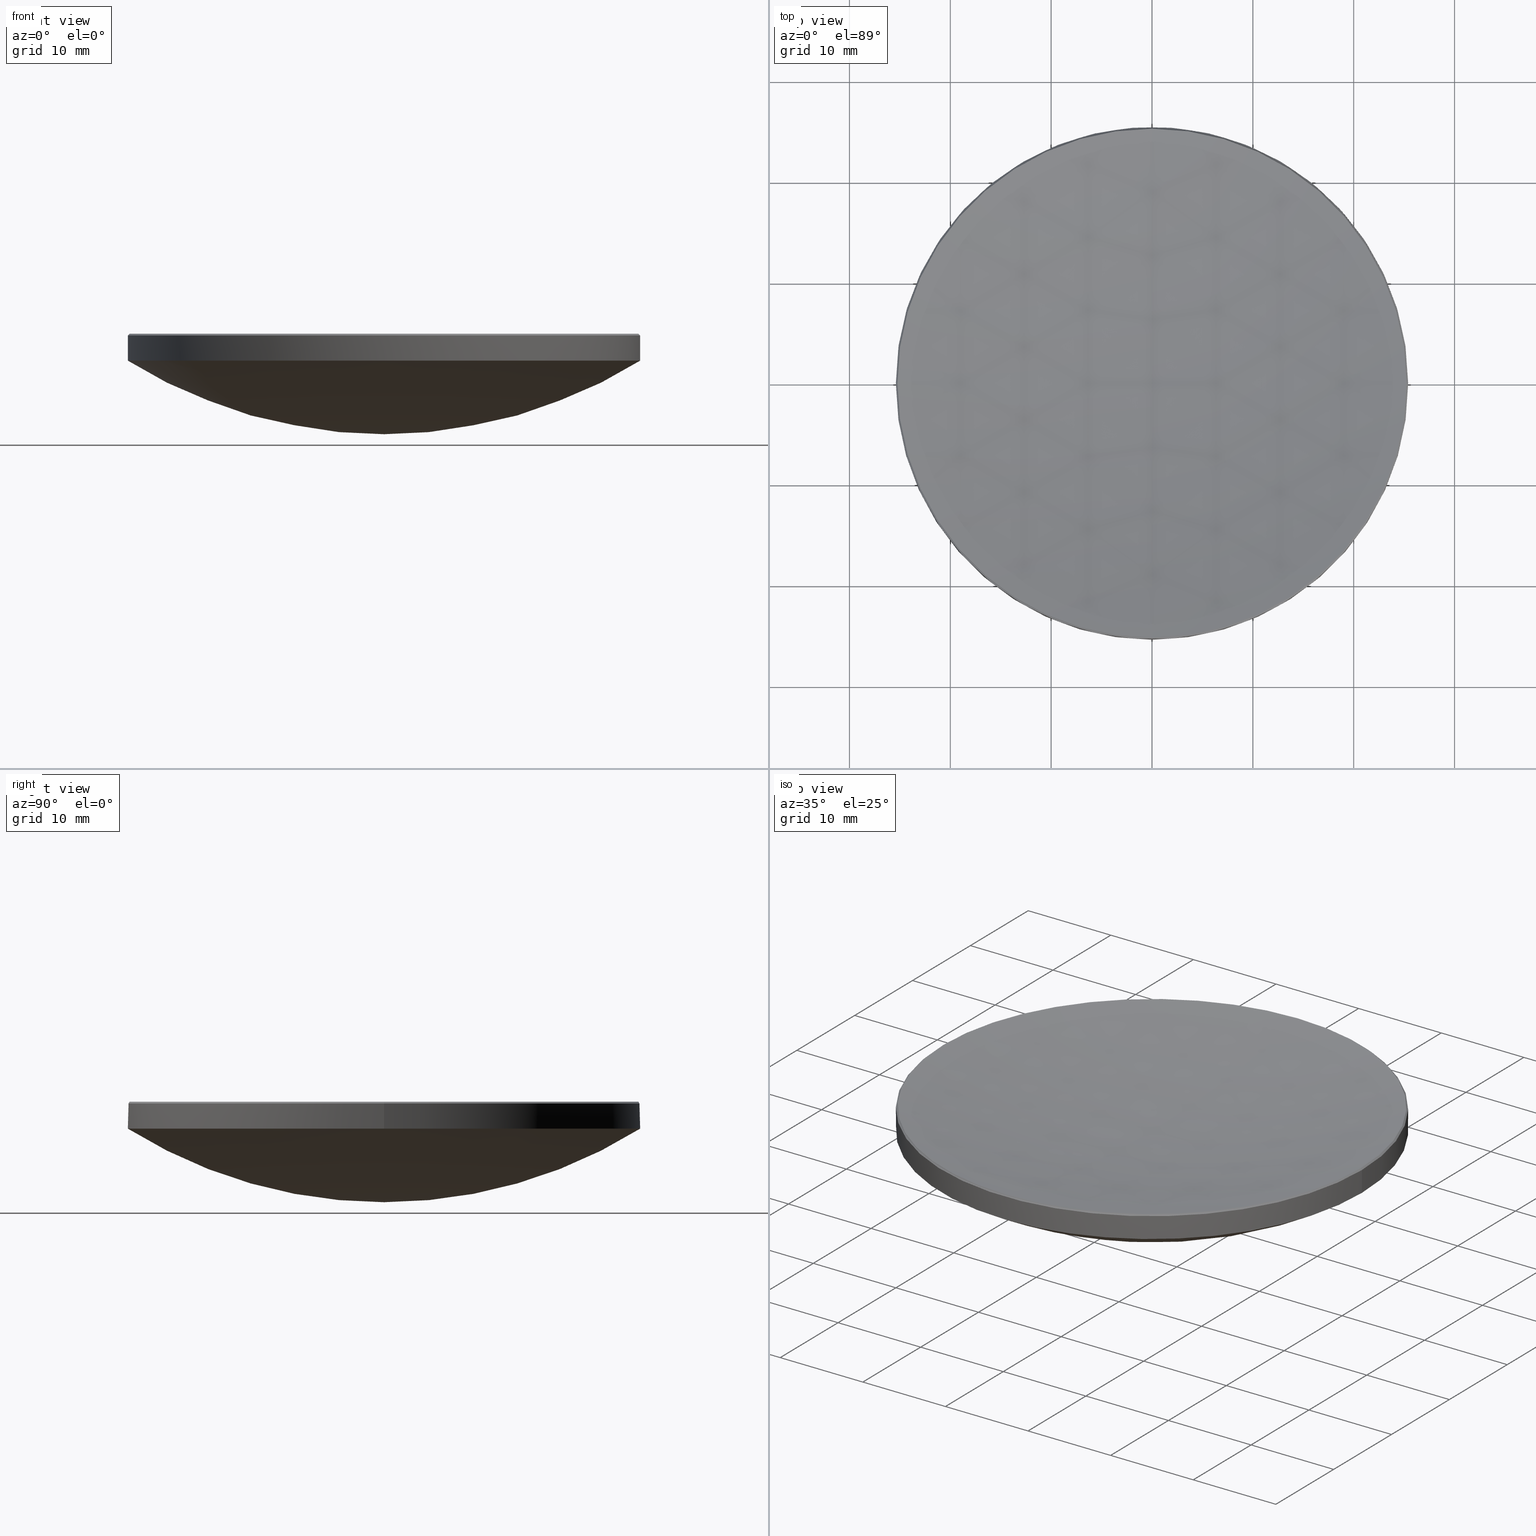
[diagram: canonical four-view strip — front | top / right | iso, engineering-drawing reading convention]
A machine part, canonical four-view strip (front | top / right | iso — engineering-drawing reading convention). The complete STEP part file that produces these views, byte-faithful:
ISO-10303-21;
HEADER;
FILE_DESCRIPTION (( 'STEP AP214' ),
    '1' );
FILE_NAME ('GLM1-050B-150-SWIR.STEP',
    '2024-08-09T02:23:44',
    ( 'Windows User' ),
    ( 'P R C' ),
    'SwSTEP 2.0',
    'SolidWorks 2022',
    '' );
FILE_SCHEMA (( 'AUTOMOTIVE_DESIGN' ));
ENDSEC;

DATA;
#1 = CARTESIAN_POINT ( 'NONE',  ( 0.000000000000000000, 0.000000000000000000, 53.57557023628872628 ) ) ;
#2 = CONICAL_SURFACE ( 'NONE', #137, 25.23567881563414872, 0.7853981633974062015 ) ;
#3 = DIRECTION ( 'NONE',  ( 0.7071067811865177077, 8.659560562354566777E-17, -0.7071067811865773267 ) ) ;
#4 = DIRECTION ( 'NONE',  ( 0.000000000000000000, 1.000000000000000000, 0.000000000000000000 ) ) ;
#5 = DIRECTION ( 'NONE',  ( -0.000000000000000000, -0.000000000000000000, 1.000000000000000000 ) ) ;
#6 = DIRECTION ( 'NONE',  ( -0.000000000000000000, -0.000000000000000000, -1.000000000000000000 ) ) ;
#7 = LINE ( 'NONE', #179, #99 ) ;
#8 = CARTESIAN_POINT ( 'NONE',  ( 0.000000000000000000, 0.000000000000000000, 13.00000000000000000 ) ) ;
#9 = EDGE_CURVE ( 'NONE', #229, #209, #201, .T. ) ;
#10 =( LENGTH_UNIT ( ) NAMED_UNIT ( * ) SI_UNIT ( .MILLI., .METRE. ) );
#11 = SURFACE_STYLE_USAGE ( .BOTH. , #253 ) ;
#12 = CIRCLE ( 'NONE', #36, 25.23567881563414517 ) ;
#13 = EDGE_CURVE ( 'NONE', #264, #82, #73, .T. ) ;
#14 = VERTEX_POINT ( 'NONE', #167 ) ;
#15 = ORIENTED_EDGE ( 'NONE', *, *, #46, .T. ) ;
#16 = AXIS2_PLACEMENT_3D ( 'NONE', #271, #91, #4 ) ;
#17 = ORIENTED_EDGE ( 'NONE', *, *, #61, .T. ) ;
#18 = EDGE_CURVE ( 'NONE', #82, #80, #66, .T. ) ;
#19 = APPLICATION_CONTEXT ( 'automotive_design' ) ;
#20 = PRODUCT_DEFINITION_CONTEXT ( 'detailed design', #72, 'design' ) ;
#21 = VERTEX_POINT ( 'NONE', #211 ) ;
#22 = AXIS2_PLACEMENT_3D ( 'NONE', #1, #241, #109 ) ;
#23 = CARTESIAN_POINT ( 'NONE',  ( 25.23567881563414872, 3.090479328587702520E-15, 15.66432118436583742 ) ) ;
#24 = LINE ( 'NONE', #23, #127 ) ;
#25 = AXIS2_PLACEMENT_3D ( 'NONE', #105, #107, #268 ) ;
#26 = DIRECTION ( 'NONE',  ( -0.000000000000000000, -0.000000000000000000, 1.000000000000000000 ) ) ;
#27 = CARTESIAN_POINT ( 'NONE',  ( 0.000000000000000000, 0.000000000000000000, 15.66432118436585164 ) ) ;
#28 = FILL_AREA_STYLE_COLOUR ( '', #272 ) ;
#29 = DIRECTION ( 'NONE',  ( 0.000000000000000000, 0.000000000000000000, -1.000000000000000000 ) ) ;
#30 = DIRECTION ( 'NONE',  ( -0.000000000000000000, -0.000000000000000000, 1.000000000000000000 ) ) ;
#31 = EDGE_CURVE ( 'NONE', #209, #14, #236, .T. ) ;
#32 = CIRCLE ( 'NONE', #172, 47.86999999999999744 ) ;
#33 = FACE_OUTER_BOUND ( 'NONE', #232, .T. ) ;
#34 = CARTESIAN_POINT ( 'NONE',  ( 0.000000000000000000, 0.000000000000000000, 53.57557023628872628 ) ) ;
#35 = ORIENTED_EDGE ( 'NONE', *, *, #9, .F. ) ;
#36 = AXIS2_PLACEMENT_3D ( 'NONE', #86, #197, #174 ) ;
#37 = FILL_AREA_STYLE ('',( #204 ) ) ;
#38 = ORIENTED_EDGE ( 'NONE', *, *, #133, .F. ) ;
#39 = AXIS2_PLACEMENT_3D ( 'NONE', #51, #114, #138 ) ;
#40 = CARTESIAN_POINT ( 'NONE',  ( 0.000000000000000000, 0.000000000000000000, 15.49999999999997158 ) ) ;
#41 = ORIENTED_EDGE ( 'NONE', *, *, #210, .T. ) ;
#42 = AXIS2_PLACEMENT_3D ( 'NONE', #195, #216, #173 ) ;
#43 = STYLED_ITEM ( 'NONE', ( #56 ), #55 ) ;
#44 = CARTESIAN_POINT ( 'NONE',  ( 25.23567881563414872, 3.100541099210989890E-15, 15.66432118436585164 ) ) ;
#45 = DIRECTION ( 'NONE',  ( -1.000000000000000000, 1.224646799147353207E-16, 0.000000000000000000 ) ) ;
#46 = EDGE_CURVE ( 'NONE', #98, #119, #212, .T. ) ;
#47 = PRESENTATION_STYLE_ASSIGNMENT (( #130 ) ) ;
#48 = FILL_AREA_STYLE ('',( #28 ) ) ;
#49 =( GEOMETRIC_REPRESENTATION_CONTEXT ( 3 ) GLOBAL_UNCERTAINTY_ASSIGNED_CONTEXT ( ( #100 ) ) GLOBAL_UNIT_ASSIGNED_CONTEXT ( ( #10, #273, #111 ) ) REPRESENTATION_CONTEXT ( 'NONE', 'WORKASPACE' ) );
#50 = EDGE_LOOP ( 'NONE', ( #163, #17, #143, #281 ) ) ;
#51 = CARTESIAN_POINT ( 'NONE',  ( 0.000000000000000000, 0.000000000000000000, 15.66432118436583742 ) ) ;
#52 = EDGE_CURVE ( 'NONE', #245, #82, #12, .T. ) ;
#53 = DIRECTION ( 'NONE',  ( -1.000000000000000000, 0.000000000000000000, 0.000000000000000000 ) ) ;
#54 = CARTESIAN_POINT ( 'NONE',  ( 25.39999999999999858, 3.110602869834276865E-15, 15.49999999999997158 ) ) ;
#55 = ADVANCED_BREP_SHAPE_REPRESENTATION ( 'GLM1-050B-150-SWIR', ( #116, #191 ), #49 ) ;
#56 = PRESENTATION_STYLE_ASSIGNMENT (( #11 ) ) ;
#57 = PRODUCT_DEFINITION_SHAPE ( 'NONE', 'NONE',  #265 ) ;
#58 = CIRCLE ( 'NONE', #62, 25.23567881563414517 ) ;
#59 = ORIENTED_EDGE ( 'NONE', *, *, #61, .F. ) ;
#60 = EDGE_LOOP ( 'NONE', ( #208, #278, #258, #78 ) ) ;
#61 = EDGE_CURVE ( 'NONE', #134, #21, #32, .T. ) ;
#62 = AXIS2_PLACEMENT_3D ( 'NONE', #27, #30, #181 ) ;
#63 = DIRECTION ( 'NONE',  ( -1.224646799147353207E-16, -1.000000000000000000, 0.000000000000000000 ) ) ;
#64 = EDGE_CURVE ( 'NONE', #209, #229, #103, .T. ) ;
#65 = CARTESIAN_POINT ( 'NONE',  ( 0.000000000000000000, 25.39999999999999858, 12.99999999999999822 ) ) ;
#66 = CIRCLE ( 'NONE', #165, 25.23567881563414517 ) ;
#67 = FACE_OUTER_BOUND ( 'NONE', #170, .T. ) ;
#68 = DIRECTION ( 'NONE',  ( -0.000000000000000000, -0.000000000000000000, -1.000000000000000000 ) ) ;
#69 = DIRECTION ( 'NONE',  ( 1.000000000000000000, -0.000000000000000000, 0.000000000000000000 ) ) ;
#70 =( LENGTH_UNIT ( ) NAMED_UNIT ( * ) SI_UNIT ( .MILLI., .METRE. ) );
#71 = CARTESIAN_POINT ( 'NONE',  ( 0.000000000000000000, 25.23567881563418425, 15.66432118436585164 ) ) ;
#72 = APPLICATION_CONTEXT ( 'automotive_design' ) ;
#73 = CIRCLE ( 'NONE', #155, 119.3200000000000074 ) ;
#74 = DIRECTION ( 'NONE',  ( 0.000000000000000000, 1.000000000000000000, 0.000000000000000000 ) ) ;
#75 = CIRCLE ( 'NONE', #234, 47.86999999999999744 ) ;
#76 =( NAMED_UNIT ( * ) PLANE_ANGLE_UNIT ( ) SI_UNIT ( $, .RADIAN. ) );
#77 = ORIENTED_EDGE ( 'NONE', *, *, #64, .T. ) ;
#78 = ORIENTED_EDGE ( 'NONE', *, *, #52, .T. ) ;
#79 = AXIS2_PLACEMENT_3D ( 'NONE', #85, #267, #238 ) ;
#80 = VERTEX_POINT ( 'NONE', #44 ) ;
#81 = ORIENTED_EDGE ( 'NONE', *, *, #164, .F. ) ;
#82 = VERTEX_POINT ( 'NONE', #218 ) ;
#83 = MECHANICAL_DESIGN_GEOMETRIC_PRESENTATION_REPRESENTATION (  '', ( #187 ), #250 ) ;
#84 = ORIENTED_EDGE ( 'NONE', *, *, #164, .T. ) ;
#85 = CARTESIAN_POINT ( 'NONE',  ( 0.000000000000000000, 0.000000000000000000, 13.00000000000000000 ) ) ;
#86 = CARTESIAN_POINT ( 'NONE',  ( 0.000000000000000000, 0.000000000000000000, 15.66432118436585164 ) ) ;
#87 = CLOSED_SHELL ( 'NONE', ( #231, #180, #263, #226, #128, #205, #146, #247 ) ) ;
#88 = PRODUCT_DEFINITION_FORMATION_WITH_SPECIFIED_SOURCE ( '�κ�', '', #230, .NOT_KNOWN. ) ;
#89 = DIRECTION ( 'NONE',  ( -1.224646799147353207E-16, -1.000000000000000000, 0.000000000000000000 ) ) ;
#90 = CYLINDRICAL_SURFACE ( 'NONE', #244, 25.39999999999999858 ) ;
#91 = DIRECTION ( 'NONE',  ( -1.000000000000000000, 0.000000000000000000, 0.000000000000000000 ) ) ;
#92 = DIRECTION ( 'NONE',  ( 1.000000000000000000, 0.000000000000000000, 0.000000000000000000 ) ) ;
#93 = SPHERICAL_SURFACE ( 'NONE', #150, 119.3200000000000074 ) ;
#94 =( LENGTH_UNIT ( ) NAMED_UNIT ( * ) SI_UNIT ( .MILLI., .METRE. ) );
#95 = ORIENTED_EDGE ( 'NONE', *, *, #106, .T. ) ;
#96 = SURFACE_STYLE_FILL_AREA ( #37 ) ;
#97 = ORIENTED_EDGE ( 'NONE', *, *, #159, .T. ) ;
#98 = VERTEX_POINT ( 'NONE', #193 ) ;
#99 = VECTOR ( 'NONE', #158, 1000.000000000000114 ) ;
#100 = UNCERTAINTY_MEASURE_WITH_UNIT (LENGTH_MEASURE( 1.000000000000000082E-05 ), #10, 'distance_accuracy_value', 'NONE');
#101 = EDGE_LOOP ( 'NONE', ( #77, #84, #15, #185, #186 ) ) ;
#102 = DIRECTION ( 'NONE',  ( 0.000000000000000000, 0.000000000000000000, -1.000000000000000000 ) ) ;
#103 = CIRCLE ( 'NONE', #25, 25.39999999999999858 ) ;
#104 =( GEOMETRIC_REPRESENTATION_CONTEXT ( 3 ) GLOBAL_UNCERTAINTY_ASSIGNED_CONTEXT ( ( #254 ) ) GLOBAL_UNIT_ASSIGNED_CONTEXT ( ( #94, #76, #277 ) ) REPRESENTATION_CONTEXT ( 'NONE', 'WORKASPACE' ) );
#105 = CARTESIAN_POINT ( 'NONE',  ( 0.000000000000000000, 0.000000000000000000, 15.49999999999997158 ) ) ;
#106 = EDGE_CURVE ( 'NONE', #14, #21, #108, .T. ) ;
#107 = DIRECTION ( 'NONE',  ( 0.000000000000000000, 0.000000000000000000, -1.000000000000000000 ) ) ;
#108 = CIRCLE ( 'NONE', #42, 25.39999999999999503 ) ;
#109 = DIRECTION ( 'NONE',  ( 0.000000000000000000, 1.000000000000000000, 0.000000000000000000 ) ) ;
#110 = FACE_OUTER_BOUND ( 'NONE', #60, .T. ) ;
#111 =( NAMED_UNIT ( * ) SI_UNIT ( $, .STERADIAN. ) SOLID_ANGLE_UNIT ( ) );
#112 = EDGE_CURVE ( 'NONE', #80, #229, #24, .T. ) ;
#113 = DIRECTION ( 'NONE',  ( -1.000000000000000000, 0.000000000000000000, 0.000000000000000000 ) ) ;
#114 = DIRECTION ( 'NONE',  ( 0.000000000000000000, 0.000000000000000000, -1.000000000000000000 ) ) ;
#115 = CARTESIAN_POINT ( 'NONE',  ( 25.39999999999999858, 3.110602869834276865E-15, 20.00000000000000000 ) ) ;
#116 = MANIFOLD_SOLID_BREP ( '����1', #87 ) ;
#117 = AXIS2_PLACEMENT_3D ( 'NONE', #40, #102, #190 ) ;
#118 = ORIENTED_EDGE ( 'NONE', *, *, #31, .T. ) ;
#119 = VERTEX_POINT ( 'NONE', #65 ) ;
#120 = ORIENTED_EDGE ( 'NONE', *, *, #46, .F. ) ;
#121 = DIRECTION ( 'NONE',  ( 1.000000000000000000, 0.000000000000000000, 0.000000000000000000 ) ) ;
#122 = ORIENTED_EDGE ( 'NONE', *, *, #112, .T. ) ;
#123 = AXIS2_PLACEMENT_3D ( 'NONE', #203, #177, #249 ) ;
#124 = ORIENTED_EDGE ( 'NONE', *, *, #52, .F. ) ;
#125 = CARTESIAN_POINT ( 'NONE',  ( -25.39999999999999858, 0.000000000000000000, 20.00000000000000000 ) ) ;
#126 = DIRECTION ( 'NONE',  ( -0.000000000000000000, -0.000000000000000000, -1.000000000000000000 ) ) ;
#127 = VECTOR ( 'NONE', #3, 1000.000000000000114 ) ;
#128 = ADVANCED_FACE ( 'NONE', ( #67 ), #90, .T. ) ;
#129 = SPHERICAL_SURFACE ( 'NONE', #22, 47.86999999999999744 ) ;
#130 = SURFACE_STYLE_USAGE ( .BOTH. , #151 ) ;
#131 =( NAMED_UNIT ( * ) SI_UNIT ( $, .STERADIAN. ) SOLID_ANGLE_UNIT ( ) );
#132 = FACE_OUTER_BOUND ( 'NONE', #156, .T. ) ;
#133 = EDGE_CURVE ( 'NONE', #233, #245, #279, .T. ) ;
#134 = VERTEX_POINT ( 'NONE', #237 ) ;
#135 = CARTESIAN_POINT ( 'NONE',  ( 0.000000000000000000, 0.000000000000000000, 53.57557023628872628 ) ) ;
#136 = LINE ( 'NONE', #115, #256 ) ;
#137 = AXIS2_PLACEMENT_3D ( 'NONE', #175, #246, #53 ) ;
#138 = DIRECTION ( 'NONE',  ( -1.000000000000000000, 0.000000000000000000, 0.000000000000000000 ) ) ;
#139 = APPLICATION_PROTOCOL_DEFINITION ( 'draft international standard', 'automotive_design', 1998, #19 ) ;
#140 = EDGE_LOOP ( 'NONE', ( #280, #255, #145, #189 ) ) ;
#141 = AXIS2_PLACEMENT_3D ( 'NONE', #149, #5, #270 ) ;
#142 = CARTESIAN_POINT ( 'NONE',  ( 0.000000000000000000, 0.000000000000000000, 0.000000000000000000 ) ) ;
#143 = ORIENTED_EDGE ( 'NONE', *, *, #106, .F. ) ;
#144 = DIRECTION ( 'NONE',  ( -0.000000000000000000, -0.000000000000000000, 1.000000000000000000 ) ) ;
#145 = ORIENTED_EDGE ( 'NONE', *, *, #18, .T. ) ;
#146 = ADVANCED_FACE ( 'NONE', ( #194 ), #129, .T. ) ;
#147 = PRESENTATION_LAYER_ASSIGNMENT (  '', '', ( #43 ) ) ;
#148 = CARTESIAN_POINT ( 'NONE',  ( 0.000000000000000000, 0.000000000000000000, 15.66432118436585164 ) ) ;
#149 = CARTESIAN_POINT ( 'NONE',  ( 0.000000000000000000, 0.000000000000000000, 15.66432118436585164 ) ) ;
#150 = AXIS2_PLACEMENT_3D ( 'NONE', #202, #225, #74 ) ;
#151 = SURFACE_SIDE_STYLE ('',( #282 ) ) ;
#152 = DIRECTION ( 'NONE',  ( -1.000000000000000000, 0.000000000000000000, 0.000000000000000000 ) ) ;
#153 = DIRECTION ( 'NONE',  ( 1.000000000000000000, 0.000000000000000000, 0.000000000000000000 ) ) ;
#154 = CARTESIAN_POINT ( 'NONE',  ( 0.000000000000000000, 7.306242803713110362E-15, 12.96517229905352941 ) ) ;
#155 = AXIS2_PLACEMENT_3D ( 'NONE', #214, #171, #63 ) ;
#156 = EDGE_LOOP ( 'NONE', ( #235, #122, #221, #207, #38 ) ) ;
#157 = CYLINDRICAL_SURFACE ( 'NONE', #123, 25.39999999999999858 ) ;
#158 = DIRECTION ( 'NONE',  ( -0.7071067811865177077, 0.000000000000000000, -0.7071067811865773267 ) ) ;
#159 = EDGE_CURVE ( 'NONE', #21, #98, #224, .T. ) ;
#160 = CARTESIAN_POINT ( 'NONE',  ( -25.39999999999999858, 0.000000000000000000, 15.49999999999997158 ) ) ;
#161 = CONICAL_SURFACE ( 'NONE', #39, 25.23567881563414872, 0.7853981633974062015 ) ;
#162 = APPLICATION_PROTOCOL_DEFINITION ( 'draft international standard', 'automotive_design', 1998, #72 ) ;
#163 = ORIENTED_EDGE ( 'NONE', *, *, #275, .F. ) ;
#164 = EDGE_CURVE ( 'NONE', #229, #98, #136, .T. ) ;
#165 = AXIS2_PLACEMENT_3D ( 'NONE', #148, #144, #121 ) ;
#166 = EDGE_LOOP ( 'NONE', ( #59, #261, #120, #259 ) ) ;
#167 = CARTESIAN_POINT ( 'NONE',  ( -25.39999999999999503, 0.000000000000000000, 13.00000000000000000 ) ) ;
#168 = MECHANICAL_DESIGN_GEOMETRIC_PRESENTATION_REPRESENTATION (  '', ( #43 ), #104 ) ;
#169 = ORIENTED_EDGE ( 'NONE', *, *, #18, .F. ) ;
#170 = EDGE_LOOP ( 'NONE', ( #81, #227, #118, #95, #97 ) ) ;
#171 = DIRECTION ( 'NONE',  ( -1.000000000000000000, 1.224646799147353207E-16, 0.000000000000000000 ) ) ;
#172 = AXIS2_PLACEMENT_3D ( 'NONE', #176, #45, #89 ) ;
#173 = DIRECTION ( 'NONE',  ( 1.000000000000000000, 0.000000000000000000, 0.000000000000000000 ) ) ;
#174 = DIRECTION ( 'NONE',  ( 1.000000000000000000, 0.000000000000000000, 0.000000000000000000 ) ) ;
#175 = CARTESIAN_POINT ( 'NONE',  ( 0.000000000000000000, 0.000000000000000000, 15.66432118436583742 ) ) ;
#176 = CARTESIAN_POINT ( 'NONE',  ( 0.000000000000000000, 0.000000000000000000, 53.57557023628872628 ) ) ;
#177 = DIRECTION ( 'NONE',  ( -0.000000000000000000, -0.000000000000000000, -1.000000000000000000 ) ) ;
#178 = AXIS2_PLACEMENT_3D ( 'NONE', #240, #26, #153 ) ;
#179 = CARTESIAN_POINT ( 'NONE',  ( -25.23567881563414872, 0.000000000000000000, 15.66432118436583742 ) ) ;
#180 = ADVANCED_FACE ( 'NONE', ( #222 ), #248, .T. ) ;
#181 = DIRECTION ( 'NONE',  ( 1.000000000000000000, 0.000000000000000000, 0.000000000000000000 ) ) ;
#182 = FACE_OUTER_BOUND ( 'NONE', #101, .T. ) ;
#183 = AXIS2_PLACEMENT_3D ( 'NONE', #135, #113, #274 ) ;
#184 = DIRECTION ( 'NONE',  ( 1.000000000000000000, 0.000000000000000000, 0.000000000000000000 ) ) ;
#185 = ORIENTED_EDGE ( 'NONE', *, *, #215, .T. ) ;
#186 = ORIENTED_EDGE ( 'NONE', *, *, #31, .F. ) ;
#187 = STYLED_ITEM ( 'NONE', ( #47 ), #116 ) ;
#188 = PRODUCT_RELATED_PRODUCT_CATEGORY ( 'part', '', ( #230 ) ) ;
#189 = ORIENTED_EDGE ( 'NONE', *, *, #192, .T. ) ;
#190 = DIRECTION ( 'NONE',  ( 1.000000000000000000, 0.000000000000000000, 0.000000000000000000 ) ) ;
#191 = AXIS2_PLACEMENT_3D ( 'NONE', #142, #276, #184 ) ;
#192 = EDGE_CURVE ( 'NONE', #80, #233, #58, .T. ) ;
#193 = CARTESIAN_POINT ( 'NONE',  ( 25.39999999999999503, 3.110602869834276471E-15, 13.00000000000000000 ) ) ;
#194 = FACE_OUTER_BOUND ( 'NONE', #166, .T. ) ;
#195 = CARTESIAN_POINT ( 'NONE',  ( 0.000000000000000000, 0.000000000000000000, 13.00000000000000000 ) ) ;
#196 = AXIS2_PLACEMENT_3D ( 'NONE', #220, #242, #29 ) ;
#197 = DIRECTION ( 'NONE',  ( -0.000000000000000000, -0.000000000000000000, 1.000000000000000000 ) ) ;
#198 = SPHERICAL_SURFACE ( 'NONE', #16, 119.3200000000000074 ) ;
#199 = CARTESIAN_POINT ( 'NONE',  ( 0.000000000000000000, 0.000000000000000000, 20.00000000000000000 ) ) ;
#200 = FACE_OUTER_BOUND ( 'NONE', #140, .T. ) ;
#201 = CIRCLE ( 'NONE', #117, 25.39999999999999858 ) ;
#202 = CARTESIAN_POINT ( 'NONE',  ( 0.000000000000000000, 0.000000000000000000, 132.2851722990535279 ) ) ;
#203 = CARTESIAN_POINT ( 'NONE',  ( 0.000000000000000000, 0.000000000000000000, 20.00000000000000000 ) ) ;
#204 = FILL_AREA_STYLE_COLOUR ( '', #213 ) ;
#205 = ADVANCED_FACE ( 'NONE', ( #110 ), #93, .F. ) ;
#206 = PRESENTATION_LAYER_ASSIGNMENT (  '', '', ( #187 ) ) ;
#207 = ORIENTED_EDGE ( 'NONE', *, *, #210, .F. ) ;
#208 = ORIENTED_EDGE ( 'NONE', *, *, #13, .F. ) ;
#209 = VERTEX_POINT ( 'NONE', #160 ) ;
#210 = EDGE_CURVE ( 'NONE', #245, #209, #7, .T. ) ;
#211 = CARTESIAN_POINT ( 'NONE',  ( -3.110602869834276865E-15, -25.39999999999999858, 12.99999999999999822 ) ) ;
#212 = CIRCLE ( 'NONE', #79, 25.39999999999999503 ) ;
#213 = COLOUR_RGB ( '',1.000000000000000000, 1.000000000000000000, 1.000000000000000000 ) ;
#214 = CARTESIAN_POINT ( 'NONE',  ( 0.000000000000000000, 0.000000000000000000, 132.2851722990535279 ) ) ;
#215 = EDGE_CURVE ( 'NONE', #119, #14, #266, .T. ) ;
#216 = DIRECTION ( 'NONE',  ( -0.000000000000000000, -0.000000000000000000, 1.000000000000000000 ) ) ;
#217 = AXIS2_PLACEMENT_3D ( 'NONE', #8, #269, #92 ) ;
#218 = CARTESIAN_POINT ( 'NONE',  ( -3.090479328587706859E-15, -25.23567881563418425, 15.66432118436585164 ) ) ;
#219 =( NAMED_UNIT ( * ) PLANE_ANGLE_UNIT ( ) SI_UNIT ( $, .RADIAN. ) );
#220 = CARTESIAN_POINT ( 'NONE',  ( 0.000000000000000000, 0.000000000000000000, 132.2851722990535279 ) ) ;
#221 = ORIENTED_EDGE ( 'NONE', *, *, #64, .F. ) ;
#222 = FACE_OUTER_BOUND ( 'NONE', #50, .T. ) ;
#223 = CARTESIAN_POINT ( 'NONE',  ( -25.23567881563414872, 0.000000000000000000, 15.66432118436585164 ) ) ;
#224 = CIRCLE ( 'NONE', #178, 25.39999999999999503 ) ;
#225 = DIRECTION ( 'NONE',  ( -1.000000000000000000, 0.000000000000000000, 0.000000000000000000 ) ) ;
#226 = ADVANCED_FACE ( 'NONE', ( #182 ), #157, .T. ) ;
#227 = ORIENTED_EDGE ( 'NONE', *, *, #9, .T. ) ;
#228 = PRODUCT_CONTEXT ( 'NONE', #19, 'mechanical' ) ;
#229 = VERTEX_POINT ( 'NONE', #54 ) ;
#230 = PRODUCT ( 'GLM1-050B-150-SWIR', 'GLM1-050B-150-SWIR', '', ( #228 ) ) ;
#231 = ADVANCED_FACE ( 'NONE', ( #132 ), #2, .T. ) ;
#232 = EDGE_LOOP ( 'NONE', ( #260, #169, #124, #41, #35 ) ) ;
#233 = VERTEX_POINT ( 'NONE', #71 ) ;
#234 = AXIS2_PLACEMENT_3D ( 'NONE', #34, #69, #243 ) ;
#235 = ORIENTED_EDGE ( 'NONE', *, *, #192, .F. ) ;
#236 = LINE ( 'NONE', #125, #262 ) ;
#237 = CARTESIAN_POINT ( 'NONE',  ( 0.000000000000000000, 2.931192113759189857E-15, 5.705570236288731500 ) ) ;
#238 = DIRECTION ( 'NONE',  ( 1.000000000000000000, 0.000000000000000000, 0.000000000000000000 ) ) ;
#239 = EDGE_CURVE ( 'NONE', #264, #233, #257, .T. ) ;
#240 = CARTESIAN_POINT ( 'NONE',  ( 0.000000000000000000, 0.000000000000000000, 13.00000000000000000 ) ) ;
#241 = DIRECTION ( 'NONE',  ( -1.000000000000000000, 0.000000000000000000, 0.000000000000000000 ) ) ;
#242 = DIRECTION ( 'NONE',  ( 1.000000000000000000, 0.000000000000000000, 0.000000000000000000 ) ) ;
#243 = DIRECTION ( 'NONE',  ( 0.000000000000000000, 0.000000000000000000, -1.000000000000000000 ) ) ;
#244 = AXIS2_PLACEMENT_3D ( 'NONE', #199, #68, #152 ) ;
#245 = VERTEX_POINT ( 'NONE', #223 ) ;
#246 = DIRECTION ( 'NONE',  ( 0.000000000000000000, 0.000000000000000000, -1.000000000000000000 ) ) ;
#247 = ADVANCED_FACE ( 'NONE', ( #33 ), #161, .T. ) ;
#248 = SPHERICAL_SURFACE ( 'NONE', #183, 47.86999999999999744 ) ;
#249 = DIRECTION ( 'NONE',  ( -1.000000000000000000, 0.000000000000000000, 0.000000000000000000 ) ) ;
#250 =( GEOMETRIC_REPRESENTATION_CONTEXT ( 3 ) GLOBAL_UNCERTAINTY_ASSIGNED_CONTEXT ( ( #251 ) ) GLOBAL_UNIT_ASSIGNED_CONTEXT ( ( #70, #219, #131 ) ) REPRESENTATION_CONTEXT ( 'NONE', 'WORKASPACE' ) );
#251 = UNCERTAINTY_MEASURE_WITH_UNIT (LENGTH_MEASURE( 1.000000000000000082E-05 ), #70, 'distance_accuracy_value', 'NONE');
#252 = SHAPE_DEFINITION_REPRESENTATION ( #57, #55 ) ;
#253 = SURFACE_SIDE_STYLE ('',( #96 ) ) ;
#254 = UNCERTAINTY_MEASURE_WITH_UNIT (LENGTH_MEASURE( 1.000000000000000082E-05 ), #94, 'distance_accuracy_value', 'NONE');
#255 = ORIENTED_EDGE ( 'NONE', *, *, #13, .T. ) ;
#256 = VECTOR ( 'NONE', #6, 1000.000000000000000 ) ;
#257 = CIRCLE ( 'NONE', #196, 119.3200000000000074 ) ;
#258 = ORIENTED_EDGE ( 'NONE', *, *, #133, .T. ) ;
#259 = ORIENTED_EDGE ( 'NONE', *, *, #159, .F. ) ;
#260 = ORIENTED_EDGE ( 'NONE', *, *, #112, .F. ) ;
#261 = ORIENTED_EDGE ( 'NONE', *, *, #275, .T. ) ;
#262 = VECTOR ( 'NONE', #126, 1000.000000000000000 ) ;
#263 = ADVANCED_FACE ( 'NONE', ( #200 ), #198, .F. ) ;
#264 = VERTEX_POINT ( 'NONE', #154 ) ;
#265 = PRODUCT_DEFINITION ( 'δ֪', '', #88, #20 ) ;
#266 = CIRCLE ( 'NONE', #217, 25.39999999999999503 ) ;
#267 = DIRECTION ( 'NONE',  ( -0.000000000000000000, -0.000000000000000000, 1.000000000000000000 ) ) ;
#268 = DIRECTION ( 'NONE',  ( 1.000000000000000000, 0.000000000000000000, 0.000000000000000000 ) ) ;
#269 = DIRECTION ( 'NONE',  ( -0.000000000000000000, -0.000000000000000000, 1.000000000000000000 ) ) ;
#270 = DIRECTION ( 'NONE',  ( 1.000000000000000000, 0.000000000000000000, 0.000000000000000000 ) ) ;
#271 = CARTESIAN_POINT ( 'NONE',  ( 0.000000000000000000, 0.000000000000000000, 132.2851722990535279 ) ) ;
#272 = COLOUR_RGB ( '',1.000000000000000000, 1.000000000000000000, 1.000000000000000000 ) ;
#273 =( NAMED_UNIT ( * ) PLANE_ANGLE_UNIT ( ) SI_UNIT ( $, .RADIAN. ) );
#274 = DIRECTION ( 'NONE',  ( 0.000000000000000000, 1.000000000000000000, 0.000000000000000000 ) ) ;
#275 = EDGE_CURVE ( 'NONE', #134, #119, #75, .T. ) ;
#276 = DIRECTION ( 'NONE',  ( 0.000000000000000000, 0.000000000000000000, 1.000000000000000000 ) ) ;
#277 =( NAMED_UNIT ( * ) SI_UNIT ( $, .STERADIAN. ) SOLID_ANGLE_UNIT ( ) );
#278 = ORIENTED_EDGE ( 'NONE', *, *, #239, .T. ) ;
#279 = CIRCLE ( 'NONE', #141, 25.23567881563414517 ) ;
#280 = ORIENTED_EDGE ( 'NONE', *, *, #239, .F. ) ;
#281 = ORIENTED_EDGE ( 'NONE', *, *, #215, .F. ) ;
#282 = SURFACE_STYLE_FILL_AREA ( #48 ) ;
ENDSEC;
END-ISO-10303-21;
